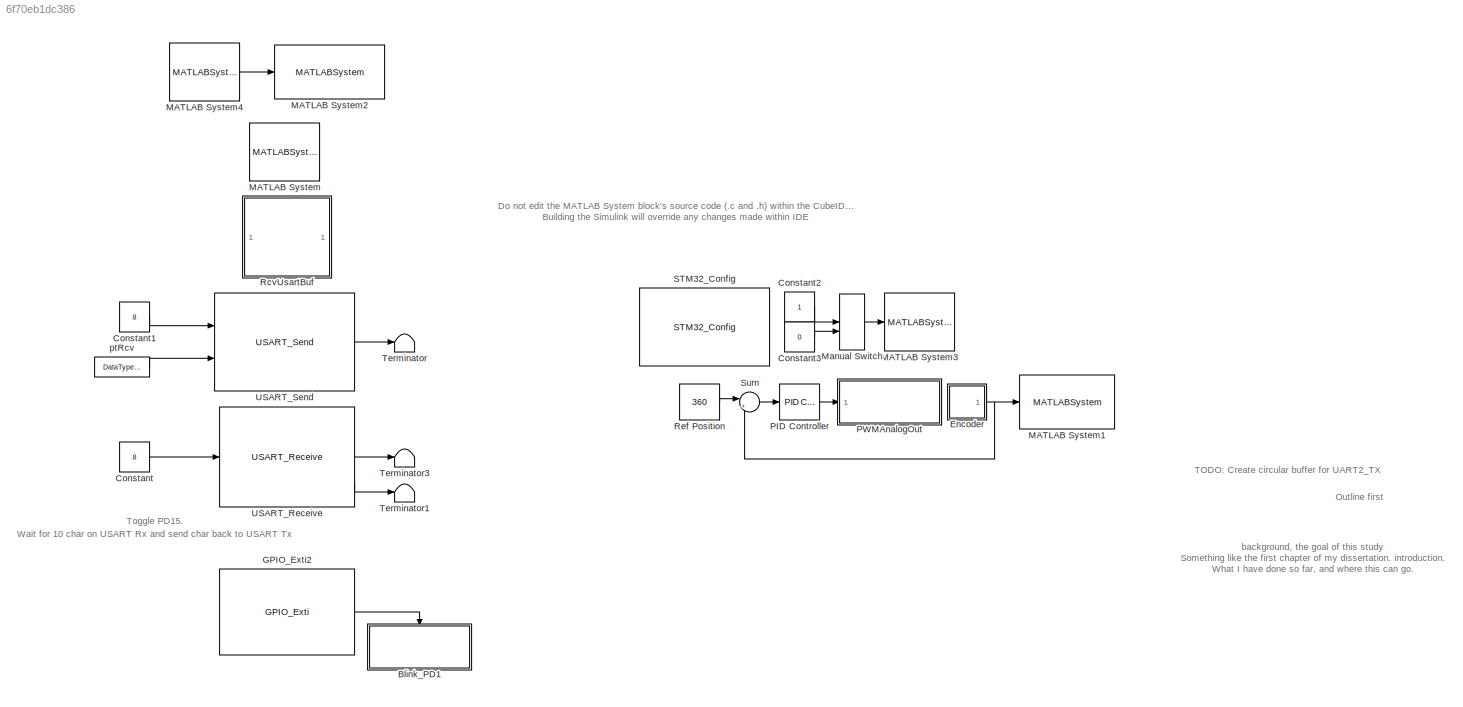
MODEL slx_6f70eb1dc386
KIND model
CONFIG AbsTol = auto
CONFIG EnableMultiTasking = off
CONFIG FixedStep = 0.0001
CONFIG MaxStep = auto
CONFIG MinStep = auto
CONFIG RelTol = 1e-3
CONFIG SampleTimeConstraint = Unconstrained
CONFIG Solver = FixedStepDiscrete
CONFIG SolverName = FixedStepDiscrete
CONFIG StartTime = 0.0
CONFIG StopTime = 10.0
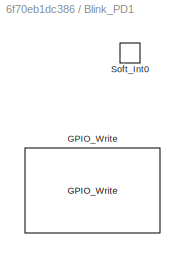
BLOCK [SubSystem] Blink_PD1
  Commented = on
  Ports = [0, 0, 0, 1]
  RequestExecContextInheritance = off
  TreatAsAtomicUnit = on
BLOCK [Reference] Blink_PD1/GPIO_Write  REF=GPIO_Lib/GPIO_Write
  Ports = []
  SourceBlock = GPIO_Lib/GPIO_Write
  SourceProductName = Target Support Package - STM32 Adapter
  SourceType = GPIO_Write
BLOCK [TriggerPort] Blink_PD1/Soft_Int0
  Ports = []
  StatesWhenEnabling = held
  TriggerType = function-call
  VariantControl = Variant
BLOCK [Constant] Constant
  Commented = on
  Value = 8
BLOCK [Constant] Constant1
  Commented = on
  Value = 8
BLOCK [Constant] Constant2
  Commented = on
  SampleTime = -1
BLOCK [Constant] Constant3
  Commented = on
  SampleTime = -1
  Value = 0
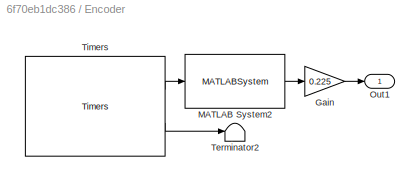
BLOCK [SubSystem] Encoder
  Ports = [0, 1]
  RequestExecContextInheritance = off
BLOCK [Gain] Encoder/Gain
  Gain = 0.225
  OutDataTypeStr = double
  ParamDataTypeStr = Inherit: Inherit via internal rule
  SaturateOnIntegerOverflow = off
BLOCK [MATLABSystem] Encoder/MATLAB System2
  MaskDisplay = disp('Count2Angle');\nport_label('input',1,'u');\nport_label('output',1,'y');
  MaskType = Count2Angle
  Ports = [1, 1]
  System = Count2Angle
BLOCK [Outport] Encoder/Out1
  IconDisplay = Port number
BLOCK [Terminator] Encoder/Terminator2
BLOCK [Reference] Encoder/Timers  REF=TIMERS_Lib/Timers
  Ports = [1, 2]
  SourceBlock = TIMERS_Lib/Timers
  SourceProductName = Target Support Package - STM32 Adapter
  SourceType = Timers
BLOCK [Reference] GPIO_Exti2  REF=GPIO_Lib/GPIO_Exti
  Commented = on
  Ports = [0, 1]
  SourceBlock = GPIO_Lib/GPIO_Exti
  SourceProductName = Target Support Package - STM32 Adapter
  SourceType = GPIO_Exti
BLOCK [MATLABSystem] MATLAB System
  Commented = on
  MaskDisplay = disp('Encoder');\nport_label('output',1,'y');
  MaskType = Encoder
  Ports = [0, 1]
  SampleTime = -1
  System = Encoder
BLOCK [MATLABSystem] MATLAB System1
  MaskDisplay = disp('UART2_TX');\nport_label('input',1,'u');
  MaskType = UART2_TX
  Ports = [1]
  Priority = 16
  System = UART2_TX
BLOCK [MATLABSystem] MATLAB System2
  Commented = on
  MaskDisplay = disp('PWM Analog Out');\nport_label('input',1,'u');
  MaskType = PWMAnalogOut
  Ports = [1]
  System = PWMAnalogOut
BLOCK [MATLABSystem] MATLAB System3
  Commented = on
  MaskDisplay = disp('DigitalOut');\nport_label('input',1,'u');
  MaskType = DigitalOut
  Ports = [1]
  Priority = -1
  System = DigitalOut
BLOCK [MATLABSystem] MATLAB System4
  Commented = on
  D = 0.0
  DT = 0.001
  I = 0.0
  IntegralLim = 1.0
  MaskDisplay = disp('PID');\nport_label('input',1,'u');\nport_label('output',1,'y');
  MaskType = PIDController
  OutLim = 3.0
  P = 0.1
  Ports = [1, 1]
  System = PIDController
BLOCK [ManualSwitch] Manual Switch
  Commented = on
  CurrentSetting = 0
BLOCK [Reference] PID Controller  REF=simulink/Continuous/PID Controller
  Ports = [1, 1]
  SourceBlock = simulink/Continuous/PID Controller
  SourceProductBaseCode = SL
  SourceProductName = Simulink
  SourceType = PID 1dof
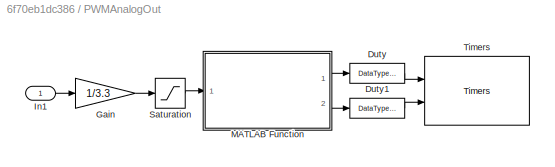
BLOCK [SubSystem] PWMAnalogOut
  Ports = [1]
  RequestExecContextInheritance = off
BLOCK [DataTypeConversion] PWMAnalogOut/Duty
  OutDataTypeStr = fixdt('single', 'DataTypeOverride', 'Off')
  RndMeth = Floor
  SaturateOnIntegerOverflow = off
BLOCK [DataTypeConversion] PWMAnalogOut/Duty1
  OutDataTypeStr = fixdt('single', 'DataTypeOverride', 'Off')
  RndMeth = Floor
  SaturateOnIntegerOverflow = off
BLOCK [Gain] PWMAnalogOut/Gain
  Gain = 1/3.3
  OutDataTypeStr = Inherit: Inherit via internal rule
  ParamDataTypeStr = Inherit: Inherit via internal rule
  SaturateOnIntegerOverflow = off
BLOCK [Inport] PWMAnalogOut/In1
  IconDisplay = Port number
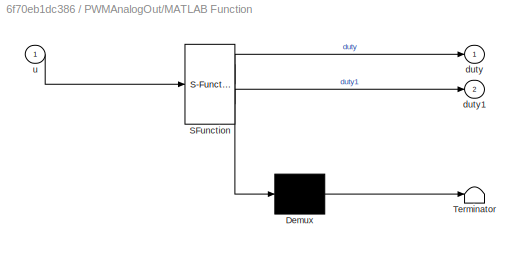
BLOCK [SubSystem] PWMAnalogOut/MATLAB Function
  ErrorFcn = Stateflow.Translate.translate
  PermitHierarchicalResolution = ExplicitOnly
  Ports = [1, 2]
  RequestExecContextInheritance = off
  SFBlockType = MATLAB Function
  TreatAsAtomicUnit = on
BLOCK [Demux] PWMAnalogOut/MATLAB Function/ Demux 
  Outputs = 1
  Ports = [1, 1]
BLOCK [S-Function] PWMAnalogOut/MATLAB Function/ SFunction 
  EnableBusSupport = on
  FunctionName = sf_sfun
  PortCounts = [1 3]
  Ports = [1, 3]
  SFcnIsStateOwnerBlock = off
  SFunctionDeploymentMode = off
  Tag = Stateflow S-Function Motorlab_PWM 1
BLOCK [Terminator] PWMAnalogOut/MATLAB Function/ Terminator 
BLOCK [Outport] PWMAnalogOut/MATLAB Function/duty
  IconDisplay = Port number
BLOCK [Outport] PWMAnalogOut/MATLAB Function/duty1
  IconDisplay = Port number
  Port = 2
BLOCK [Inport] PWMAnalogOut/MATLAB Function/u
  IconDisplay = Port number
BLOCK [Saturate] PWMAnalogOut/Saturation
  InputPortMap = u0
  LowerLimit = -1
  Ports = [1, 1]
  UpperLimit = 1
BLOCK [Reference] PWMAnalogOut/Timers  REF=TIMERS_Lib/Timers
  Ports = [2]
  SourceBlock = TIMERS_Lib/Timers
  SourceProductName = Target Support Package - STM32 Adapter
  SourceType = Timers
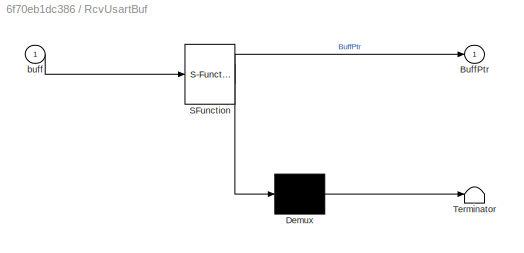
BLOCK [SubSystem] RcvUsartBuf
  Commented = on
  ErrorFcn = Stateflow.Translate.translate
  PermitHierarchicalResolution = ExplicitOnly
  Ports = [1, 1]
  RequestExecContextInheritance = off
  SFBlockType = MATLAB Function
  TreatAsAtomicUnit = on
BLOCK [Demux] RcvUsartBuf/ Demux 
  Outputs = 1
  Ports = [1, 1]
BLOCK [S-Function] RcvUsartBuf/ SFunction 
  EnableBusSupport = on
  FunctionName = sf_sfun
  PortCounts = [1 2]
  Ports = [1, 2]
  SFcnIsStateOwnerBlock = off
  SFunctionDeploymentMode = off
  Tag = Stateflow S-Function Motorlab_PWM 2
BLOCK [Terminator] RcvUsartBuf/ Terminator 
BLOCK [Outport] RcvUsartBuf/BuffPtr
  IconDisplay = Port number
BLOCK [Inport] RcvUsartBuf/buff
  IconDisplay = Port number
BLOCK [Constant] Ref Position
  SampleTime = -1
  Value = 360
BLOCK [Reference] STM32_Config  REF=STM32_Config_Lib/STM32_Config
  Ports = []
  Priority = 0
  SourceBlock = STM32_Config_Lib/STM32_Config
  SourceProductName = Target Support Package - STM32 Adapter
  SourceType = STM32_Config
BLOCK [Sum] Sum
  IconShape = round
  InputSameDT = off
  Inputs = |+-
  OutDataTypeStr = Inherit: Inherit via internal rule
  Ports = [2, 1]
  SaturateOnIntegerOverflow = off
BLOCK [Terminator] Terminator
  Commented = on
BLOCK [Terminator] Terminator1
  Commented = on
BLOCK [Terminator] Terminator3
  Commented = on
BLOCK [Reference] USART_Receive  REF=USART_Lib/USART_Receive
  Commented = on
  Ports = [1, 3]
  SourceBlock = USART_Lib/USART_Receive
  SourceProductName = Target Support Package - STM32 Adapter
  SourceType = USART_Receive
BLOCK [Reference] USART_Send  REF=USART_Lib/USART_Send
  Commented = on
  Ports = [2, 1]
  SourceBlock = USART_Lib/USART_Send
  SourceProductName = Target Support Package - STM32 Adapter
  SourceType = USART_Send
BLOCK [DataTypeConversion] ptRcv
  Commented = on
  OutDataTypeStr = fixdt('uint32', 'DataTypeOverride', 'Off')
  RndMeth = Floor
  SaturateOnIntegerOverflow = off
ANNOTATION (root): Do not edit the MATLAB System block's source code (.c and .h) within the CubeIDE's project folder Building the Simulink will override any changes made within IDE
ANNOTATION (root): Wait for 10 char on USART Rx and send char back to USART Tx Toggle PD15 .
ANNOTATION (root): Outline first
ANNOTATION (root): TODO: Create circular buffer for UART2_TX
ANNOTATION (root): background, the goal of this study Something like the first chapter of my dissertation. introduction. What I have done so far, and where this can go.
LINE Constant1:1 -> USART_Send:1
LINE Constant2:1 -> Manual Switch:1
LINE Constant3:1 -> Manual Switch:2
LINE Constant:1 -> USART_Receive:1
LINE Encoder/Gain:1 -> Encoder/Out1:1
LINE Encoder/MATLAB System2:1 -> Encoder/Gain:1
LINE Encoder/Timers:1 -> Encoder/MATLAB System2:1
LINE Encoder/Timers:2 -> Encoder/Terminator2:1
NET Encoder:1 -> MATLAB System1:1, Sum:2
LINE GPIO_Exti2:1 -> Blink_PD1:trigger
LINE MATLAB System4:1 -> MATLAB System2:1
LINE Manual Switch:1 -> MATLAB System3:1
LINE PID Controller:1 -> PWMAnalogOut:1
LINE PWMAnalogOut/Duty1:1 -> PWMAnalogOut/Timers:2
LINE PWMAnalogOut/Duty:1 -> PWMAnalogOut/Timers:1
LINE PWMAnalogOut/Gain:1 -> PWMAnalogOut/Saturation:1
LINE PWMAnalogOut/In1:1 -> PWMAnalogOut/Gain:1
LINE PWMAnalogOut/MATLAB Function:1 -> PWMAnalogOut/Duty:1
LINE PWMAnalogOut/MATLAB Function:2 -> PWMAnalogOut/Duty1:1
LINE PWMAnalogOut/Saturation:1 -> PWMAnalogOut/MATLAB Function:1
LINE Ref Position:1 -> Sum:1
LINE Sum:1 -> PID Controller:1
LINE USART_Receive:2 -> Terminator3:1
LINE USART_Receive:3 -> Terminator1:1
LINE USART_Send:1 -> Terminator:1
LINE ptRcv:1 -> USART_Send:2
note: NET lines group one-source signal fan-out (src -> all destinations, sorted); 1:1 wires keep LINE
CHART PWMAnalogOut/MATLAB Function states=1 transitions=1
  STATE_LABEL 'eML_blk_kernel()'
  STATE_LABEL 'SCRIPT:\nfunction [duty, duty1] = dutyCycle(u)\n\nduty  = double(u);\nduty1 = duty;\n% duty = ((duty+1)/2)*double(100); %Add 1 to go from -1;1 to 0;2 so /2 and must give percentage\n% duty1 = ((duty1+1)/2)*double(100); %Add 1 to go from -1;1 to 0;2 so /2 and must give percentage\nif (duty < 0)\n    duty  = double(0);\n    duty1 = -double(u)*100;\nelse\n    duty  = double(u)*100;\n    duty1 = double(0);\nend\nen...<+1ch>'
CHART RcvUsartBuf states=1 transitions=1
  STATE_LABEL 'eML_blk_kernel()'
  STATE_LABEL "SCRIPT:\nfunction BuffPtr = convert(buff)\nif coder.target('Sfun')\n    % Executing in MATLAB, Buff is null\n    BuffPtr = uint32(0);\n    %NbChar = uint16(0);\nelse\n    coder.cinclude('getBuffPtr.h');\n    % Executing in the generated code.\n    BuffPtr = coder.ceval('getBuffPtr',coder.rref(buff));\nend\nend\n"
